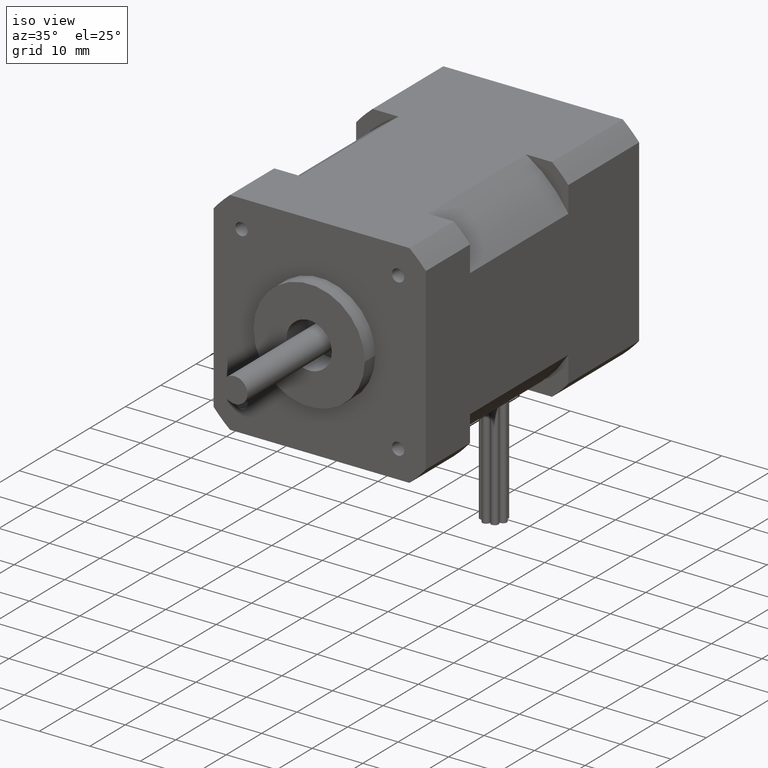
[diagram: clean part render]
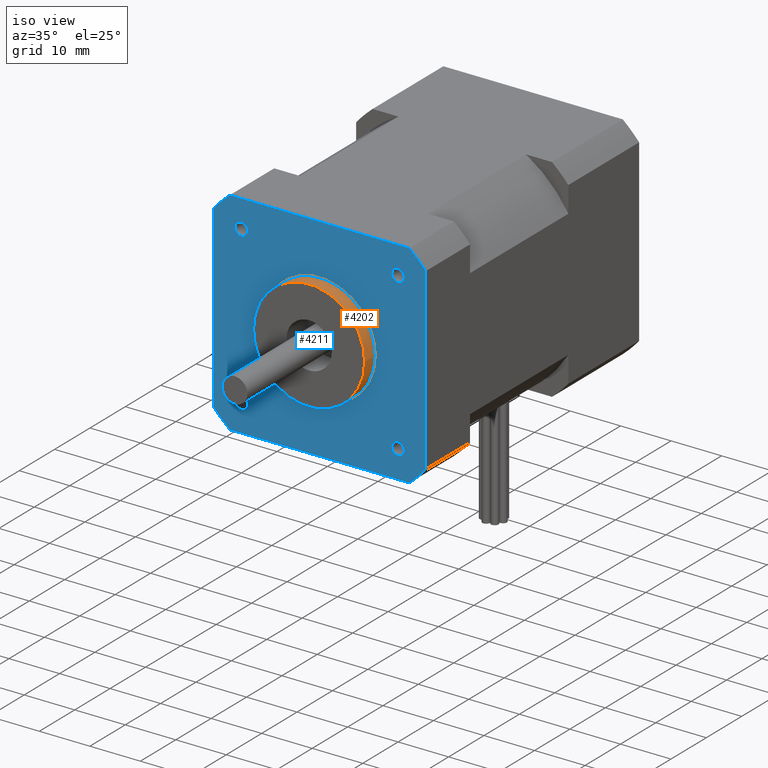
[diagram: same view with the hole feature highlighted: cylindrical wall and planar end face, labeled with their STEP entity ids]
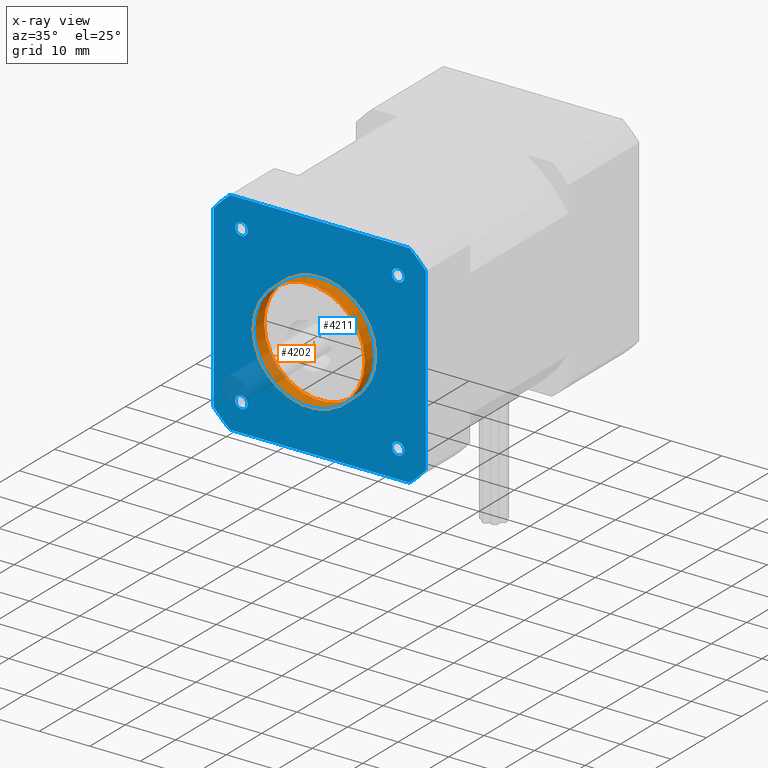
[diagram: x-ray of the same camera — body ghosted, the hole faces saturated]
A machine part, iso view. The highlighted faces form one hole feature of diameter 22 mm: the cylindrical wall (entity #4202, orange) and its adjacent planar end face (entity #4211, blue) — they share a circular edge in the B-rep.
The next image is the same camera in x-ray (body ghosted, the hole faces saturated) — the bore reads through the body.
Wall:
#813=FACE_BOUND('',#1238,.T.);
#936=FACE_OUTER_BOUND('',#1237,.T.);
#1237=EDGE_LOOP('',(#2973));
#1238=EDGE_LOOP('',(#2974));
#1545=CIRCLE('',#4557,1.1);
#1546=CIRCLE('',#4558,1.1);
#1835=VERTEX_POINT('',#6552);
#1836=VERTEX_POINT('',#6554);
#2276=EDGE_CURVE('',#1835,#1835,#1545,.T.);
#2277=EDGE_CURVE('',#1836,#1836,#1546,.T.);
#2973=ORIENTED_EDGE('',*,*,#2276,.F.);
#2974=ORIENTED_EDGE('',*,*,#2277,.F.);
#3830=CYLINDRICAL_SURFACE('',#4556,1.1);
#4202=ADVANCED_FACE('',(#936,#813),#3830,.T.);
#4556=AXIS2_PLACEMENT_3D('',#6551,#5316,#5317);
#4557=AXIS2_PLACEMENT_3D('',#6553,#5318,#5319);
#4558=AXIS2_PLACEMENT_3D('',#6555,#5320,#5321);
#5316=DIRECTION('center_axis',(-1.33226762955019E-16,-1.,1.24501532695106E-16));
#5317=DIRECTION('ref_axis',(-1.,1.33226762955019E-16,-1.65869361839074E-32));
#5318=DIRECTION('center_axis',(-1.33226762955019E-16,-1.,1.24501532695106E-16));
#5319=DIRECTION('ref_axis',(-1.,1.33226762955019E-16,-1.65869361839074E-32));
#5320=DIRECTION('center_axis',(1.33226762955019E-16,1.,-1.24501532695106E-16));
#5321=DIRECTION('ref_axis',(-1.,1.33226762955019E-16,-1.65869361839074E-32));
#6551=CARTESIAN_POINT('Origin',(-0.415259953298977,-2.33735649038034,1.44780279227959));
#6552=CARTESIAN_POINT('',(0.684740046701023,-2.63735649038034,1.44780279227959));
#6553=CARTESIAN_POINT('Origin',(-0.415259953298977,-2.63735649038034,1.44780279227959));
#6554=CARTESIAN_POINT('',(0.684740046701023,-2.33735649038034,1.44780279227959));
#6555=CARTESIAN_POINT('Origin',(-0.415259953298977,-2.33735649038034,1.44780279227959));
End face:
#237=PLANE('',#4572);
#406=LINE('',#6524,#628);
#411=LINE('',#6534,#633);
#421=LINE('',#6568,#643);
#423=LINE('',#6579,#645);
#628=VECTOR('',#5289,3.55105618091294);
#633=VECTOR('',#5296,3.55105618091294);
#643=VECTOR('',#5334,3.55105618091294);
#645=VECTOR('',#5352,3.55105618091294);
#815=FACE_BOUND('',#1249,.T.);
#816=FACE_BOUND('',#1250,.T.);
#817=FACE_BOUND('',#1251,.T.);
#818=FACE_BOUND('',#1252,.T.);
#819=FACE_BOUND('',#1253,.T.);
#945=FACE_OUTER_BOUND('',#1248,.T.);
#1248=EDGE_LOOP('',(#3013,#3014,#3015,#3016,#3017,#3018,#3019,#3020));
#1249=EDGE_LOOP('',(#3021));
#1250=EDGE_LOOP('',(#3022));
#1251=EDGE_LOOP('',(#3023));
#1252=EDGE_LOOP('',(#3024));
#1253=EDGE_LOOP('',(#3025));
#1523=CIRCLE('',#4515,0.12295);
#1525=CIRCLE('',#4519,0.12295);
#1527=CIRCLE('',#4523,0.12295);
#1529=CIRCLE('',#4527,0.12295);
#1546=CIRCLE('',#4558,1.1);
#1547=CIRCLE('',#4561,2.75);
#1548=CIRCLE('',#4564,2.75);
#1550=CIRCLE('',#4567,2.75);
#1551=CIRCLE('',#4569,2.75);
#1797=VERTEX_POINT('',#6447);
#1799=VERTEX_POINT('',#6453);
#1801=VERTEX_POINT('',#6459);
#1803=VERTEX_POINT('',#6465);
#1825=VERTEX_POINT('',#6521);
#1826=VERTEX_POINT('',#6523);
#1829=VERTEX_POINT('',#6531);
#1830=VERTEX_POINT('',#6533);
#1836=VERTEX_POINT('',#6554);
#1837=VERTEX_POINT('',#6558);
#1838=VERTEX_POINT('',#6559);
#1840=VERTEX_POINT('',#6566);
#1841=VERTEX_POINT('',#6575);
#2229=EDGE_CURVE('',#1797,#1797,#1523,.T.);
#2231=EDGE_CURVE('',#1799,#1799,#1525,.T.);
#2233=EDGE_CURVE('',#1801,#1801,#1527,.T.);
#2235=EDGE_CURVE('',#1803,#1803,#1529,.T.);
#2262=EDGE_CURVE('',#1825,#1826,#406,.T.);
#2267=EDGE_CURVE('',#1829,#1830,#411,.T.);
#2277=EDGE_CURVE('',#1836,#1836,#1546,.T.);
#2278=EDGE_CURVE('',#1837,#1838,#1547,.T.);
#2283=EDGE_CURVE('',#1840,#1837,#421,.T.);
#2284=EDGE_CURVE('',#1826,#1840,#1548,.T.);
#2286=EDGE_CURVE('',#1830,#1825,#1550,.T.);
#2287=EDGE_CURVE('',#1841,#1829,#1551,.T.);
#2289=EDGE_CURVE('',#1838,#1841,#423,.T.);
#3013=ORIENTED_EDGE('',*,*,#2289,.F.);
#3014=ORIENTED_EDGE('',*,*,#2278,.F.);
#3015=ORIENTED_EDGE('',*,*,#2283,.F.);
#3016=ORIENTED_EDGE('',*,*,#2284,.F.);
#3017=ORIENTED_EDGE('',*,*,#2262,.F.);
#3018=ORIENTED_EDGE('',*,*,#2286,.F.);
#3019=ORIENTED_EDGE('',*,*,#2267,.F.);
#3020=ORIENTED_EDGE('',*,*,#2287,.F.);
#3021=ORIENTED_EDGE('',*,*,#2229,.T.);
#3022=ORIENTED_EDGE('',*,*,#2231,.T.);
#3023=ORIENTED_EDGE('',*,*,#2233,.T.);
#3024=ORIENTED_EDGE('',*,*,#2235,.T.);
#3025=ORIENTED_EDGE('',*,*,#2277,.T.);
#4211=ADVANCED_FACE('',(#945,#815,#816,#817,#818,#819),#237,.F.);
#4515=AXIS2_PLACEMENT_3D('',#6448,#5209,#5210);
#4519=AXIS2_PLACEMENT_3D('',#6454,#5217,#5218);
#4523=AXIS2_PLACEMENT_3D('',#6460,#5225,#5226);
#4527=AXIS2_PLACEMENT_3D('',#6466,#5233,#5234);
#4558=AXIS2_PLACEMENT_3D('',#6555,#5320,#5321);
#4561=AXIS2_PLACEMENT_3D('',#6560,#5326,#5327);
#4564=AXIS2_PLACEMENT_3D('',#6570,#5337,#5338);
#4567=AXIS2_PLACEMENT_3D('',#6573,#5343,#5344);
#4569=AXIS2_PLACEMENT_3D('',#6576,#5347,#5348);
#4572=AXIS2_PLACEMENT_3D('',#6581,#5355,#5356);
#5209=DIRECTION('center_axis',(1.33226762955019E-16,1.,-1.24501532695106E-16));
#5210=DIRECTION('ref_axis',(1.,-1.33226762955019E-16,1.65869361839074E-32));
#5217=DIRECTION('center_axis',(1.33226762955019E-16,1.,-1.24501532695106E-16));
#5218=DIRECTION('ref_axis',(1.,-1.33226762955019E-16,1.65869361839074E-32));
#5225=DIRECTION('center_axis',(1.33226762955019E-16,1.,-1.24501532695106E-16));
#5226=DIRECTION('ref_axis',(1.,-1.33226762955019E-16,1.65869361839074E-32));
#5233=DIRECTION('center_axis',(1.33226762955019E-16,1.,-1.24501532695106E-16));
#5234=DIRECTION('ref_axis',(1.,-1.33226762955019E-16,1.65869361839074E-32));
#5289=DIRECTION('',(-1.,1.33226762955019E-16,-1.65869361839074E-32));
#5296=DIRECTION('',(-8.21073318940323E-48,-1.24501532695106E-16,-1.));
#5320=DIRECTION('center_axis',(1.33226762955019E-16,1.,-1.24501532695106E-16));
#5321=DIRECTION('ref_axis',(-1.,1.33226762955019E-16,-1.65869361839074E-32));
#5326=DIRECTION('center_axis',(1.33226762955019E-16,1.,-1.24501532695106E-16));
#5327=DIRECTION('ref_axis',(-0.763636363636364,1.82120789385667E-16,0.645646578347807));
#5334=DIRECTION('',(8.21073318940323E-48,1.24501532695106E-16,1.));
#5337=DIRECTION('center_axis',(1.33226762955019E-16,1.,-1.24501532695106E-16));
#5338=DIRECTION('ref_axis',(-0.645646578347808,-9.05649404818232E-18,-0.763636363636364));
#5343=DIRECTION('center_axis',(1.33226762955019E-16,1.,-1.24501532695106E-16));
#5344=DIRECTION('ref_axis',(0.763636363636364,-1.82120789385667E-16,-0.645646578347808));
#5347=DIRECTION('center_axis',(1.33226762955019E-16,1.,-1.24501532695106E-16));
#5348=DIRECTION('ref_axis',(0.645646578347808,9.05649404818232E-18,0.763636363636364));
#5352=DIRECTION('',(1.,-1.33226762955019E-16,1.65869361839074E-32));
#5355=DIRECTION('center_axis',(1.33226762955019E-16,1.,-1.24501532695106E-16));
#5356=DIRECTION('ref_axis',(0.,0.,1.));
#6447=CARTESIAN_POINT('',(1.25769004670102,-2.33735649038034,-0.102197207720413));
#6448=CARTESIAN_POINT('Origin',(1.13474004670102,-2.33735649038034,-0.102197207720413));
#6453=CARTESIAN_POINT('',(-1.84230995329898,-2.33735649038034,2.99780279227959));
#6454=CARTESIAN_POINT('Origin',(-1.96525995329898,-2.33735649038034,2.99780279227959));
#6459=CARTESIAN_POINT('',(1.25769004670102,-2.33735649038034,2.99780279227959));
#6460=CARTESIAN_POINT('Origin',(1.13474004670102,-2.33735649038034,2.99780279227959));
#6465=CARTESIAN_POINT('',(-1.84230995329898,-2.33735649038034,-0.102197207720413));
#6466=CARTESIAN_POINT('Origin',(-1.96525995329898,-2.33735649038034,-0.102197207720413));
#6521=CARTESIAN_POINT('',(1.36026813715749,-2.33735649038034,-0.652197207720413));
#6523=CARTESIAN_POINT('',(-2.19078804375545,-2.33735649038034,-0.652197207720413));
#6524=CARTESIAN_POINT('',(1.36026813715749,-2.33735649038034,-0.652197207720413));
#6531=CARTESIAN_POINT('',(1.68474004670102,-2.33735649038034,3.22333088273606));
#6533=CARTESIAN_POINT('',(1.68474004670102,-2.33735649038034,-0.327725298176884));
#6534=CARTESIAN_POINT('',(1.68474004670102,-2.33735649038034,3.22333088273606));
#6554=CARTESIAN_POINT('',(0.684740046701023,-2.33735649038034,1.44780279227959));
#6555=CARTESIAN_POINT('Origin',(-0.415259953298977,-2.33735649038034,1.44780279227959));
#6558=CARTESIAN_POINT('',(-2.51525995329898,-2.33735649038034,3.22333088273606));
#6559=CARTESIAN_POINT('',(-2.19078804375545,-2.33735649038034,3.54780279227959));
#6560=CARTESIAN_POINT('Origin',(-0.415259953298977,-2.33735649038034,1.44780279227959));
#6566=CARTESIAN_POINT('',(-2.51525995329898,-2.33735649038034,-0.327725298176884));
#6568=CARTESIAN_POINT('',(-2.51525995329898,-2.33735649038034,-0.327725298176884));
#6570=CARTESIAN_POINT('Origin',(-0.415259953298977,-2.33735649038034,1.44780279227959));
#6573=CARTESIAN_POINT('Origin',(-0.415259953298977,-2.33735649038034,1.44780279227959));
#6575=CARTESIAN_POINT('',(1.36026813715749,-2.33735649038034,3.54780279227959));
#6576=CARTESIAN_POINT('Origin',(-0.415259953298977,-2.33735649038034,1.44780279227959));
#6579=CARTESIAN_POINT('',(-2.19078804375545,-2.33735649038034,3.54780279227959));
#6581=CARTESIAN_POINT('Origin',(-0.415259953298977,-2.33735649038034,1.44780279227959));